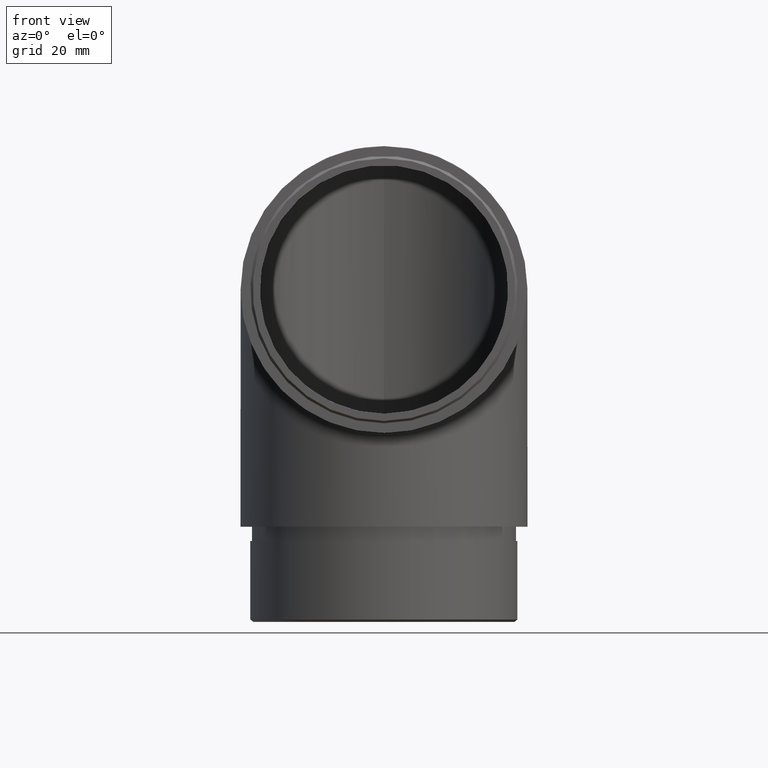
[diagram: clean part render]
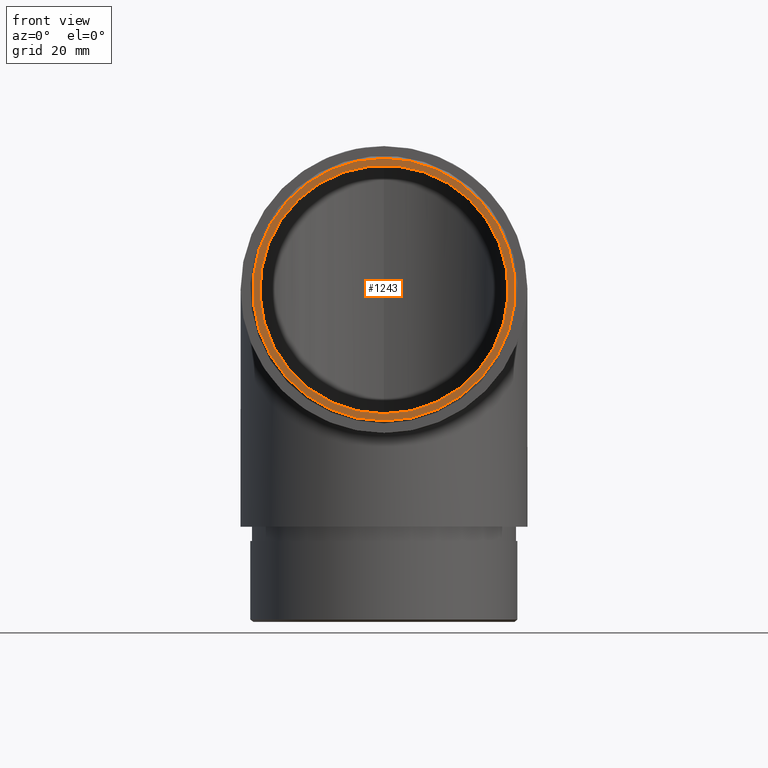
[diagram: same view with one face highlighted and labeled with its STEP entity id]
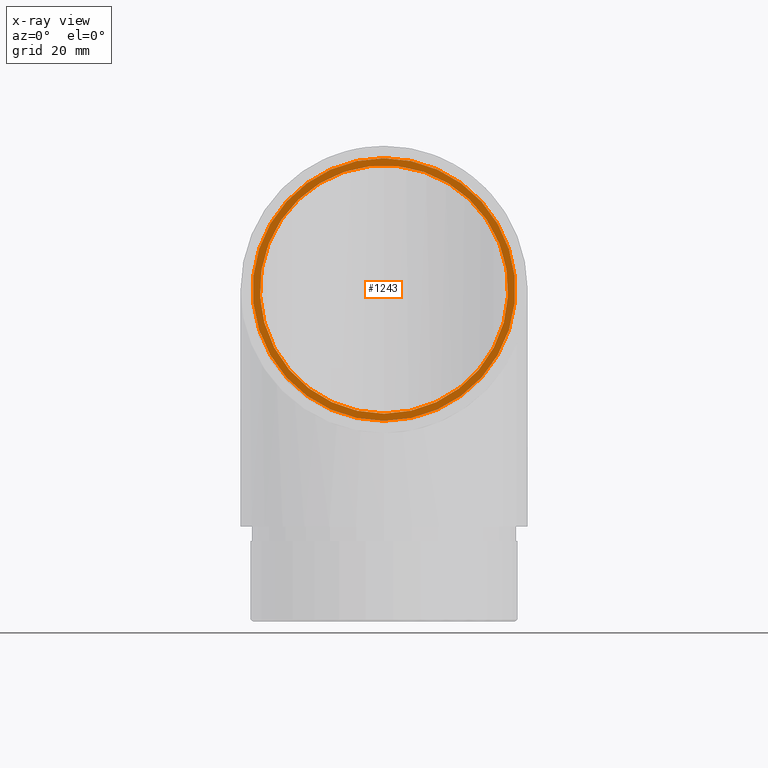
[diagram: x-ray of the same camera — body ghosted, the highlighted face saturated]
A machine part, front view. The second image highlights one B-rep face of the part: STEP entity #1243.
The next image is the same camera in x-ray: the body ghosted, the highlighted face saturated — about 0% of this face is hidden behind the body in this view.
In plain terms, the highlighted planar face has unit normal (0, -1, 0).
Its self-contained STEP definition (entity closure, byte-faithful):
#69 = FACE_BOUND ( 'NONE', #4733, .T. ) ;
#460 = CIRCLE ( 'NONE', #10182, 26.09999999999999800 ) ;
#904 = DIRECTION ( 'NONE',  ( 0.0000000000000000000, 0.0000000000000000000, -1.000000000000000000 ) ) ;
#1243 = ADVANCED_FACE ( 'NONE', ( #9773, #69 ), #1543, .T. ) ;
#1543 = PLANE ( 'NONE',  #6457 ) ;
#1957 = CARTESIAN_POINT ( 'NONE',  ( 0.0000000000000000000, -20.00000000000000000, 0.0000000000000000000 ) ) ;
#2776 = CARTESIAN_POINT ( 'NONE',  ( 0.0000000000000000000, -20.00000000000000000, -27.59999999999999800 ) ) ;
#3677 = VERTEX_POINT ( 'NONE', #2776 ) ;
#3712 = DIRECTION ( 'NONE',  ( 0.0000000000000000000, 0.0000000000000000000, -1.000000000000000000 ) ) ;
#4120 = ORIENTED_EDGE ( 'NONE', *, *, #6212, .T. ) ;
#4733 = EDGE_LOOP ( 'NONE', ( #9062 ) ) ;
#5487 = EDGE_LOOP ( 'NONE', ( #4120 ) ) ;
#5680 = EDGE_CURVE ( 'NONE', #8382, #8382, #460, .T. ) ;
#6212 = EDGE_CURVE ( 'NONE', #3677, #3677, #8568, .T. ) ;
#6457 = AXIS2_PLACEMENT_3D ( 'NONE', #9628, #10523, #6992 ) ;
#6992 = DIRECTION ( 'NONE',  ( 0.0000000000000000000, -0.0000000000000000000, -1.000000000000000000 ) ) ;
#7053 = DIRECTION ( 'NONE',  ( 0.0000000000000000000, -1.000000000000000000, 0.0000000000000000000 ) ) ;
#7912 = CARTESIAN_POINT ( 'NONE',  ( 0.0000000000000000000, -20.00000000000000000, 0.0000000000000000000 ) ) ;
#8382 = VERTEX_POINT ( 'NONE', #8948 ) ;
#8568 = CIRCLE ( 'NONE', #10937, 27.59999999999999800 ) ;
#8948 = CARTESIAN_POINT ( 'NONE',  ( 0.0000000000000000000, -20.00000000000000000, -26.09999999999999800 ) ) ;
#9062 = ORIENTED_EDGE ( 'NONE', *, *, #5680, .F. ) ;
#9628 = CARTESIAN_POINT ( 'NONE',  ( 0.0000000000000000000, -20.00000000000000000, 0.0000000000000000000 ) ) ;
#9773 = FACE_OUTER_BOUND ( 'NONE', #5487, .T. ) ;
#9864 = DIRECTION ( 'NONE',  ( 0.0000000000000000000, -1.000000000000000000, 0.0000000000000000000 ) ) ;
#10182 = AXIS2_PLACEMENT_3D ( 'NONE', #1957, #9864, #3712 ) ;
#10523 = DIRECTION ( 'NONE',  ( 0.0000000000000000000, -1.000000000000000000, 0.0000000000000000000 ) ) ;
#10937 = AXIS2_PLACEMENT_3D ( 'NONE', #7912, #7053, #904 ) ;